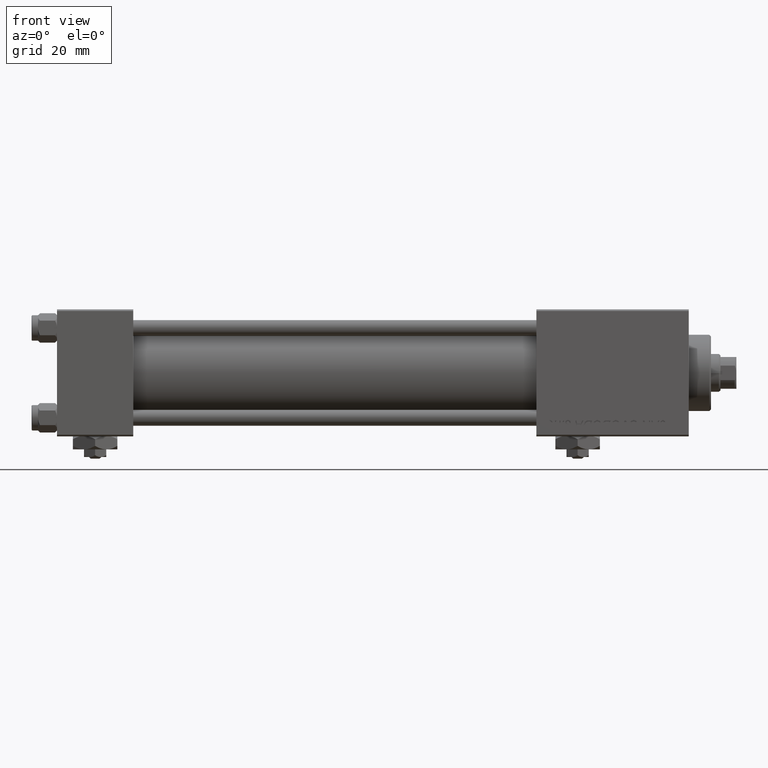
[diagram: clean part render]
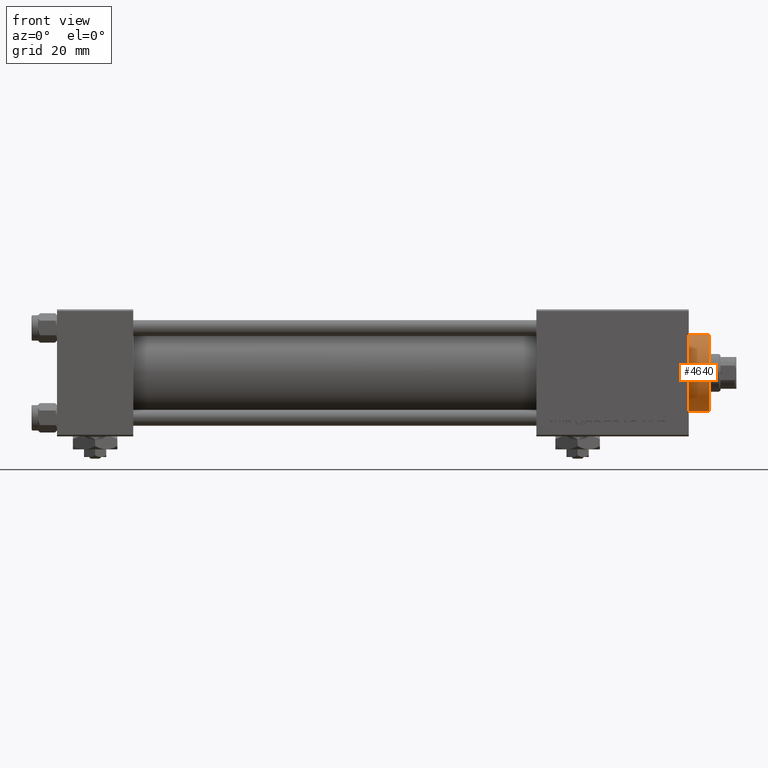
[diagram: same view with one face highlighted and labeled with its STEP entity id]
A machine part, front view. The second image highlights one B-rep face of the part: STEP entity #4640.
In plain terms, the highlighted cylindrical surface (partial cylindrical patch) has radius 12 mm, axis along (-1, -0, -0).
Its self-contained STEP definition (entity closure, byte-faithful):
#826 = DIRECTION ( 'NONE',  ( 1.000000000000000000, 0.000000000000000000, 0.000000000000000000 ) ) ;
#2199 = DIRECTION ( 'NONE',  ( 1.000000000000000000, 0.000000000000000000, 0.000000000000000000 ) ) ;
#4640 = ADVANCED_FACE ( 'NONE', ( #17190 ), #21403, .T. ) ;
#6664 = VERTEX_POINT ( 'NONE', #20457 ) ;
#8499 = EDGE_CURVE ( 'NONE', #34946, #6664, #32307, .T. ) ;
#11244 = EDGE_CURVE ( 'NONE', #34946, #40119, #44264, .T. ) ;
#12689 = DIRECTION ( 'NONE',  ( 0.000000000000000000, 0.000000000000000000, 1.000000000000000000 ) ) ;
#13306 = ORIENTED_EDGE ( 'NONE', *, *, #11244, .T. ) ;
#16560 = VECTOR ( 'NONE', #36561, 1000.000000000000000 ) ;
#17190 = FACE_OUTER_BOUND ( 'NONE', #36398, .T. ) ;
#19271 = AXIS2_PLACEMENT_3D ( 'NONE', #24272, #12689, #826 ) ;
#20457 = CARTESIAN_POINT ( 'NONE',  ( 12.00000000000000178, 1.469576158976824144E-15, 28.69999999999999929 ) ) ;
#20470 = LINE ( 'NONE', #40521, #16560 ) ;
#21403 = CYLINDRICAL_SURFACE ( 'NONE', #29756, 12.00000000000000178 ) ;
#23332 = DIRECTION ( 'NONE',  ( -0.000000000000000000, -0.000000000000000000, -1.000000000000000000 ) ) ;
#23699 = ORIENTED_EDGE ( 'NONE', *, *, #26545, .T. ) ;
#24272 = CARTESIAN_POINT ( 'NONE',  ( 0.000000000000000000, 0.000000000000000000, 28.69999999999999929 ) ) ;
#26545 = EDGE_CURVE ( 'NONE', #30845, #6664, #42055, .T. ) ;
#29756 = AXIS2_PLACEMENT_3D ( 'NONE', #37492, #42739, #42996 ) ;
#30845 = VERTEX_POINT ( 'NONE', #32362 ) ;
#31784 = EDGE_CURVE ( 'NONE', #40119, #30845, #20470, .T. ) ;
#32040 = CARTESIAN_POINT ( 'NONE',  ( 12.00000000000000178, 1.469576158976824144E-15, 35.70000000000000284 ) ) ;
#32307 = LINE ( 'NONE', #32040, #34087 ) ;
#32362 = CARTESIAN_POINT ( 'NONE',  ( -12.00000000000000178, 0.000000000000000000, 28.69999999999999929 ) ) ;
#34087 = VECTOR ( 'NONE', #23332, 1000.000000000000000 ) ;
#34946 = VERTEX_POINT ( 'NONE', #52104 ) ;
#35705 = ORIENTED_EDGE ( 'NONE', *, *, #8499, .F. ) ;
#35973 = CARTESIAN_POINT ( 'NONE',  ( -12.00000000000000178, 0.000000000000000000, 35.19999999999999574 ) ) ;
#36398 = EDGE_LOOP ( 'NONE', ( #35705, #13306, #46806, #23699 ) ) ;
#36561 = DIRECTION ( 'NONE',  ( -0.000000000000000000, -0.000000000000000000, -1.000000000000000000 ) ) ;
#37492 = CARTESIAN_POINT ( 'NONE',  ( 0.000000000000000000, 0.000000000000000000, 35.70000000000000284 ) ) ;
#40119 = VERTEX_POINT ( 'NONE', #35973 ) ;
#40521 = CARTESIAN_POINT ( 'NONE',  ( -12.00000000000000178, 0.000000000000000000, 35.70000000000000284 ) ) ;
#42055 = CIRCLE ( 'NONE', #19271, 12.00000000000000178 ) ;
#42533 = DIRECTION ( 'NONE',  ( 0.000000000000000000, 0.000000000000000000, -1.000000000000000000 ) ) ;
#42739 = DIRECTION ( 'NONE',  ( -0.000000000000000000, -0.000000000000000000, -1.000000000000000000 ) ) ;
#42996 = DIRECTION ( 'NONE',  ( -1.000000000000000000, 0.000000000000000000, 0.000000000000000000 ) ) ;
#44264 = CIRCLE ( 'NONE', #45862, 12.00000000000000178 ) ;
#45862 = AXIS2_PLACEMENT_3D ( 'NONE', #50954, #42533, #2199 ) ;
#46806 = ORIENTED_EDGE ( 'NONE', *, *, #31784, .T. ) ;
#50954 = CARTESIAN_POINT ( 'NONE',  ( 0.000000000000000000, 0.000000000000000000, 35.19999999999999574 ) ) ;
#52104 = CARTESIAN_POINT ( 'NONE',  ( 12.00000000000000178, 1.469576158976824144E-15, 35.19999999999999574 ) ) ;